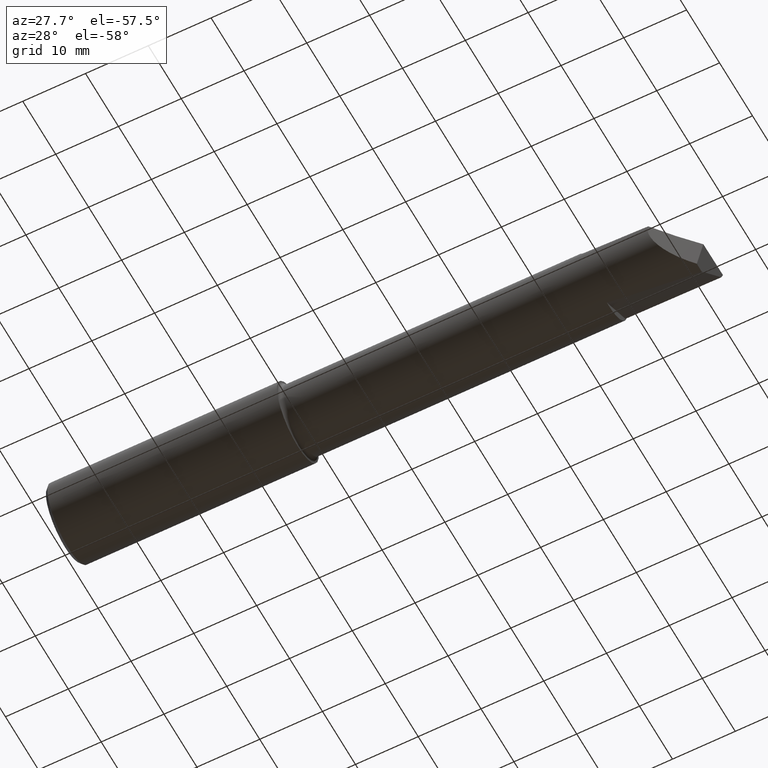
[diagram: clean part render]
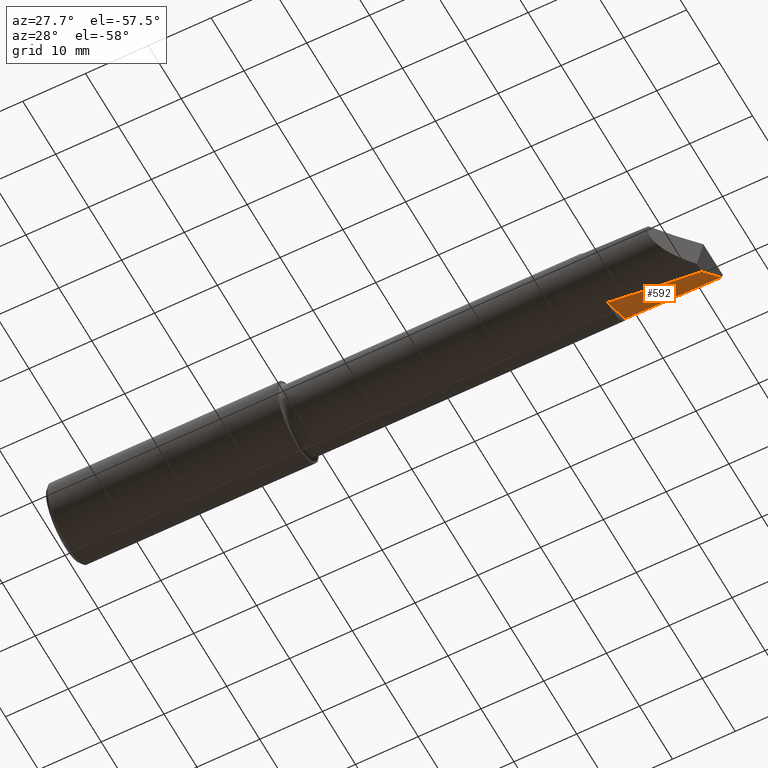
[diagram: same view with one face highlighted and labeled with its STEP entity id]
A machine part, auxiliary view. The second image highlights one B-rep face of the part: STEP entity #592.
In plain terms, the highlighted face is a freeform B-spline surface patch.
Its self-contained STEP definition (entity closure, byte-faithful):
#26 = CARTESIAN_POINT ( 'NONE',  ( 3.471819322562522903, -0.01495104440659135100, -0.2196163581689157818 ) ) ;
#36 = CARTESIAN_POINT ( 'NONE',  ( 3.605184837390442709, 0.2091104526377268180, -0.06742930688153160601 ) ) ;
#41 = CARTESIAN_POINT ( 'NONE',  ( 3.410000000000000142, 0.1970817183423179408, -0.08059262188691969364 ) ) ;
#44 = CARTESIAN_POINT ( 'NONE',  ( 3.595439364797041293, 5.335640612625514099E-18, -0.2200000000000000566 ) ) ;
#50 = B_SPLINE_CURVE_WITH_KNOTS ( 'NONE', 3,
 ( #544, #26, #360, #88 ),
 .UNSPECIFIED., .F., .F.,
 ( 4, 4 ),
 ( 0.000000000000000000, 0.004744245821462765231 ),
 .UNSPECIFIED. ) ;
#58 = CARTESIAN_POINT ( 'NONE',  ( 3.410000000000000142, -0.08390097628365034144, -0.2576738753293116302 ) ) ;
#62 = VERTEX_POINT ( 'NONE', #721 ) ;
#67 = CARTESIAN_POINT ( 'NONE',  ( 3.410000000000000142, 0.1970817183423179408, -0.08059262188691969364 ) ) ;
#69 = ORIENTED_EDGE ( 'NONE', *, *, #80, .F. ) ;
#80 = EDGE_CURVE ( 'NONE', #737, #168, #397, .T. ) ;
#81 = CARTESIAN_POINT ( 'NONE',  ( 3.971247793545428006, 0.04102909952493548340, -0.2200000000000000566 ) ) ;
#84 = CARTESIAN_POINT ( 'NONE',  ( 3.995554176883930886, 0.2286766137360566886, -0.03538440047009814432 ) ) ;
#88 = CARTESIAN_POINT ( 'NONE',  ( 3.595439364797041293, 5.335640612625514099E-18, -0.2200000000000000566 ) ) ;
#109 = LINE ( 'NONE', #345, #453 ) ;
#110 = CARTESIAN_POINT ( 'NONE',  ( 3.971247793545428006, 0.04102909952493548340, -0.2200000000000000566 ) ) ;
#118 = CARTESIAN_POINT ( 'NONE',  ( 3.606666776175601274, 0.2092017806738953045, -0.06732936455335815362 ) ) ;
#126 = ORIENTED_EDGE ( 'NONE', *, *, #156, .F. ) ;
#149 = CARTESIAN_POINT ( 'NONE',  ( 3.410000000000000142, 0.1970817183423179408, -0.08059262188691969364 ) ) ;
#156 = EDGE_CURVE ( 'NONE', #734, #737, #438, .T. ) ;
#168 = VERTEX_POINT ( 'NONE', #41 ) ;
#187 = CARTESIAN_POINT ( 'NONE',  ( 3.720539435096679171, 0.01518366230952238917, -0.2200000000000000566 ) ) ;
#259 = ORIENTED_EDGE ( 'NONE', *, *, #623, .F. ) ;
#269 = CARTESIAN_POINT ( 'NONE',  ( 3.987387192537214631, 0.1666979988148709069, -0.09749167947812314994 ) ) ;
#292 = CARTESIAN_POINT ( 'NONE',  ( 3.606667235806155336, -0.05861467462063396638, -0.2653019991292714375 ) ) ;
#297 = CARTESIAN_POINT ( 'NONE',  ( 3.845852163534262846, 0.02853572066344945563, -0.2199999999999999178 ) ) ;
#303 = ORIENTED_EDGE ( 'NONE', *, *, #413, .F. ) ;
#339 = CARTESIAN_POINT ( 'NONE',  ( 3.803332785482819389, -0.03231946398677612575, -0.2694059603548960014 ) ) ;
#345 = CARTESIAN_POINT ( 'NONE',  ( 3.410000000000000142, 0.1970817183423179408, -0.08059262188691969364 ) ) ;
#360 = CARTESIAN_POINT ( 'NONE',  ( 3.533631329114474084, -0.007501773097098954519, -0.2200000000000000566 ) ) ;
#362 = CARTESIAN_POINT ( 'NONE',  ( 3.595439364797041293, 5.335640612625514099E-18, -0.2200000000000000566 ) ) ;
#386 = FACE_OUTER_BOUND ( 'NONE', #476, .T. ) ;
#397 = B_SPLINE_CURVE_WITH_KNOTS ( 'NONE', 3,
 ( #84, #556, #36, #149 ),
 .UNSPECIFIED., .F., .F.,
 ( 4, 4 ),
 ( 0.007535277762636342913, 1.000000000000000000 ),
 .UNSPECIFIED. ) ;
#399 = CARTESIAN_POINT ( 'NONE',  ( 4.000000000000000000, 0.2288778106318485051, -0.03500000000000000333 ) ) ;
#412 = ORIENTED_EDGE ( 'NONE', *, *, #730, .F. ) ;
#413 = EDGE_CURVE ( 'NONE', #62, #491, #50, .T. ) ;
#438 = B_SPLINE_CURVE_WITH_KNOTS ( 'NONE', 3,
 ( #110, #741, #269, #507 ),
 .UNSPECIFIED., .F., .F.,
 ( 4, 4 ),
 ( 5.707661567923001753E-05, 0.006771847982226781790 ),
 .UNSPECIFIED. ) ;
#453 = VECTOR ( 'NONE', #746, 39.37007874015748854 ) ;
#476 = EDGE_LOOP ( 'NONE', ( #126, #412, #303, #259, #69 ) ) ;
#488 = CARTESIAN_POINT ( 'NONE',  ( 3.995554176883930886, 0.2286766137360566886, -0.03538440047009814432 ) ) ;
#491 = VERTEX_POINT ( 'NONE', #44 ) ;
#507 = CARTESIAN_POINT ( 'NONE',  ( 3.995554176883930886, 0.2286766137360566886, -0.03538440047009814432 ) ) ;
#513 = CARTESIAN_POINT ( 'NONE',  ( 3.803332917529187895, 0.2199919291099055041, -0.05201733606020286782 ) ) ;
#544 = CARTESIAN_POINT ( 'NONE',  ( 3.410000000000000142, -0.02232082031225495616, -0.2188647549985790752 ) ) ;
#546 = CARTESIAN_POINT ( 'NONE',  ( 3.971247793545428006, 0.04102909952493548340, -0.2200000000000000566 ) ) ;
#556 = CARTESIAN_POINT ( 'NONE',  ( 3.800369049489935147, 0.2198292400657173296, -0.05224798050574677721 ) ) ;
#592 = ADVANCED_FACE ( 'NONE', ( #386 ), #752, .T. ) ;
#603 = B_SPLINE_CURVE_WITH_KNOTS ( 'NONE', 3,
 ( #362, #187, #297, #81 ),
 .UNSPECIFIED., .F., .F.,
 ( 4, 4 ),
 ( 0.000000000000000000, 0.009602408570604764604 ),
 .UNSPECIFIED. ) ;
#623 = EDGE_CURVE ( 'NONE', #168, #62, #109, .T. ) ;
#640 = CARTESIAN_POINT ( 'NONE',  ( 4.000000000000000000, -0.005972189368149022695, -0.2698499999999999788 ) ) ;
#721 = CARTESIAN_POINT ( 'NONE',  ( 3.410000000000000142, -0.02232082031225495616, -0.2188647549985790752 ) ) ;
#730 = EDGE_CURVE ( 'NONE', #491, #734, #603, .T. ) ;
#734 = VERTEX_POINT ( 'NONE', #546 ) ;
#737 = VERTEX_POINT ( 'NONE', #488 ) ;
#741 = CARTESIAN_POINT ( 'NONE',  ( 3.979285236293183647, 0.1041417096289329880, -0.1590283092675112142 ) ) ;
#746 = DIRECTION ( 'NONE',  ( 0.000000000000000000, -0.8460071056678396539, -0.5331716207371927085 ) ) ;
#752 = B_SPLINE_SURFACE_WITH_KNOTS ( 'NONE', 1, 3, ( 
 ( #399, #513, #118, #67 ),
 ( #640, #339, #292, #58 ) ),
 .UNSPECIFIED., .F., .F., .F.,
 ( 2, 2 ),
 ( 4, 4 ),
 ( 0.000000000000000000, 1.000000000000000000 ),
 ( 0.000000000000000000, 1.000000000000000000 ),
 .UNSPECIFIED. ) ;